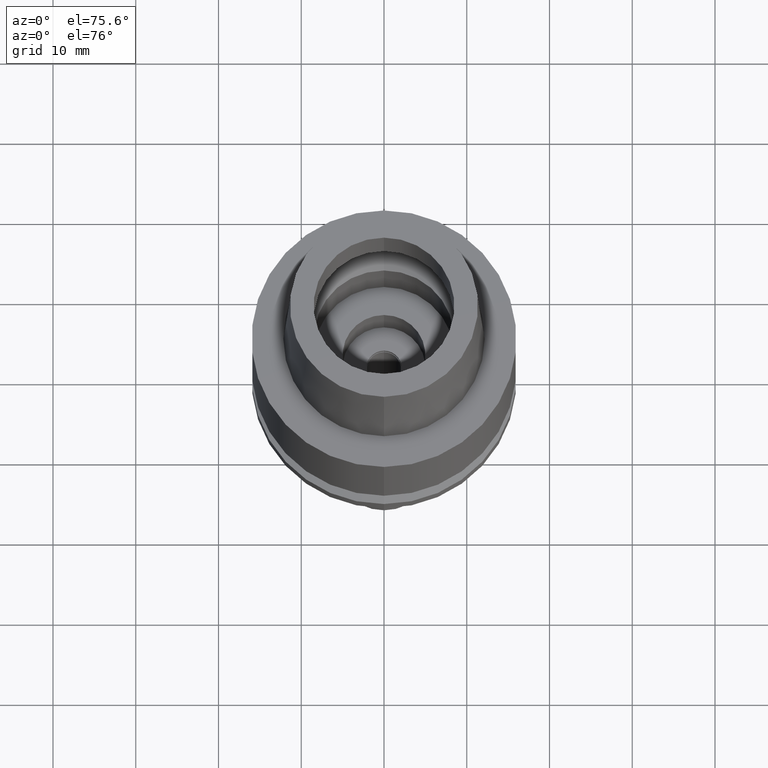
[diagram: clean part render]
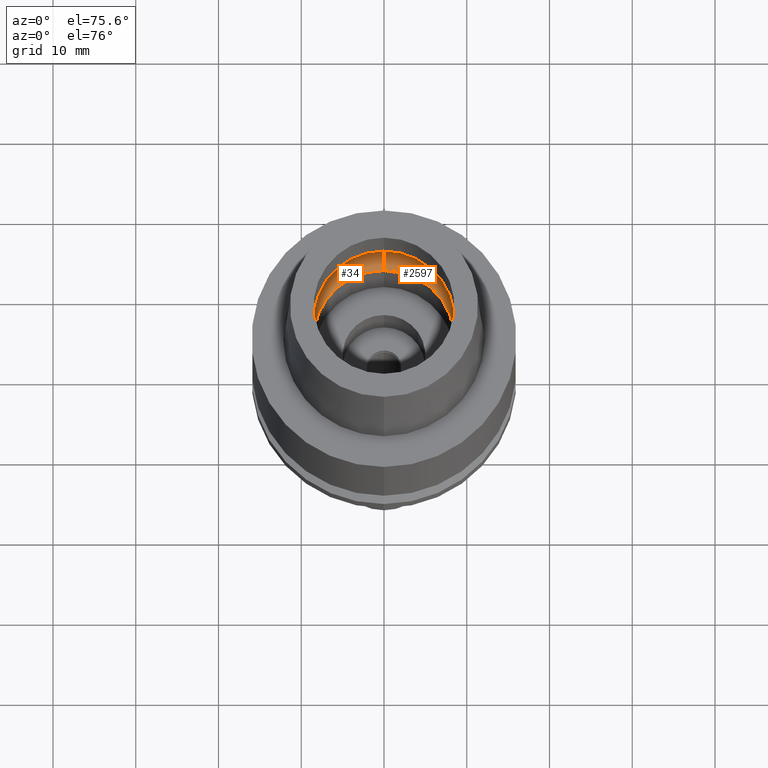
[diagram: same view with one multi-face feature highlighted, each face labeled with its STEP entity id]
A machine part, auxiliary view. The highlighted faces form ONE feature: a constant-radius fillet chain: 2 tangent blend faces with common blend radius 4 mm. The faces share edges in the B-rep.
Their STEP definitions:
[1] entity #34 (Torus):
#34 = ADVANCED_FACE ( 'NONE', ( #607 ), #733, .F. ) ;
#59 = DIRECTION ( 'NONE',  ( 1.000000000000000000, 0.0000000000000000000, 0.0000000000000000000 ) ) ;
#182 = DIRECTION ( 'NONE',  ( 0.0000000000000000000, 0.0000000000000000000, 1.000000000000000000 ) ) ;
#319 = CARTESIAN_POINT ( 'NONE',  ( 0.0000000000000000000, 10.25000000000000000, 3.357000000000000206 ) ) ;
#374 = EDGE_CURVE ( 'NONE', #835, #2148, #814, .T. ) ;
#554 = DIRECTION ( 'NONE',  ( 0.0000000000000000000, 1.000000000000000000, 0.0000000000000000000 ) ) ;
#607 = FACE_OUTER_BOUND ( 'NONE', #1351, .T. ) ;
#676 = CARTESIAN_POINT ( 'NONE',  ( 0.0000000000000000000, -10.25000000000000000, 3.357000000000000206 ) ) ;
#729 = DIRECTION ( 'NONE',  ( 0.0000000000000000000, -0.5624999999999932276, -0.8267972847076892062 ) ) ;
#733 = TOROIDAL_SURFACE ( 'NONE', #2253, 6.250000000000000000, 4.000000000000000000 ) ;
#758 = EDGE_CURVE ( 'NONE', #2148, #2440, #1122, .T. ) ;
#814 = CIRCLE ( 'NONE', #1344, 3.999999999999999112 ) ;
#835 = VERTEX_POINT ( 'NONE', #1057 ) ;
#895 = CIRCLE ( 'NONE', #2547, 8.500000000000000000 ) ;
#1057 = CARTESIAN_POINT ( 'NONE',  ( 0.0000000000000000000, -8.500000000000000000, 0.04981086116928999663 ) ) ;
#1122 = CIRCLE ( 'NONE', #1744, 10.25000000000000000 ) ;
#1123 = ORIENTED_EDGE ( 'NONE', *, *, #374, .F. ) ;
#1131 = DIRECTION ( 'NONE',  ( 0.0000000000000000000, 1.000000000000000000, 0.0000000000000000000 ) ) ;
#1178 = DIRECTION ( 'NONE',  ( -1.000000000000000000, 0.0000000000000000000, 0.0000000000000000000 ) ) ;
#1329 = DIRECTION ( 'NONE',  ( 0.0000000000000000000, 0.0000000000000000000, -1.000000000000000000 ) ) ;
#1344 = AXIS2_PLACEMENT_3D ( 'NONE', #2390, #1178, #729 ) ;
#1351 = EDGE_LOOP ( 'NONE', ( #2577, #1123, #1979, #1454 ) ) ;
#1454 = ORIENTED_EDGE ( 'NONE', *, *, #1789, .T. ) ;
#1501 = DIRECTION ( 'NONE',  ( 0.0000000000000000000, -1.000000000000000000, 0.0000000000000000000 ) ) ;
#1603 = CARTESIAN_POINT ( 'NONE',  ( 0.0000000000000000000, 8.500000000000000000, 0.04981086116927999768 ) ) ;
#1744 = AXIS2_PLACEMENT_3D ( 'NONE', #2531, #1329, #1501 ) ;
#1780 = DIRECTION ( 'NONE',  ( 0.0000000000000000000, 0.0000000000000000000, 1.000000000000000000 ) ) ;
#1789 = EDGE_CURVE ( 'NONE', #2563, #2440, #2073, .T. ) ;
#1979 = ORIENTED_EDGE ( 'NONE', *, *, #2324, .F. ) ;
#2019 = CARTESIAN_POINT ( 'NONE',  ( 0.0000000000000000000, 0.0000000000000000000, 0.04981086116928999663 ) ) ;
#2073 = CIRCLE ( 'NONE', #2502, 3.999999999999999112 ) ;
#2148 = VERTEX_POINT ( 'NONE', #676 ) ;
#2253 = AXIS2_PLACEMENT_3D ( 'NONE', #2679, #182, #554 ) ;
#2314 = DIRECTION ( 'NONE',  ( 0.0000000000000000000, 0.5624999999999932276, -0.8267972847076892062 ) ) ;
#2324 = EDGE_CURVE ( 'NONE', #2563, #835, #895, .T. ) ;
#2338 = CARTESIAN_POINT ( 'NONE',  ( 0.0000000000000000000, 6.250000000000000000, 3.357000000000000206 ) ) ;
#2390 = CARTESIAN_POINT ( 'NONE',  ( 0.0000000000000000000, -6.250000000000000000, 3.357000000000000206 ) ) ;
#2440 = VERTEX_POINT ( 'NONE', #319 ) ;
#2502 = AXIS2_PLACEMENT_3D ( 'NONE', #2338, #59, #2314 ) ;
#2531 = CARTESIAN_POINT ( 'NONE',  ( 0.0000000000000000000, 0.0000000000000000000, 3.357000000000000206 ) ) ;
#2547 = AXIS2_PLACEMENT_3D ( 'NONE', #2019, #1780, #1131 ) ;
#2563 = VERTEX_POINT ( 'NONE', #1603 ) ;
#2577 = ORIENTED_EDGE ( 'NONE', *, *, #758, .F. ) ;
#2679 = CARTESIAN_POINT ( 'NONE',  ( 0.0000000000000000000, 0.0000000000000000000, 3.357000000000000206 ) ) ;
[2] entity #2597 (Torus):
#59 = DIRECTION ( 'NONE',  ( 1.000000000000000000, 0.0000000000000000000, 0.0000000000000000000 ) ) ;
#65 = TOROIDAL_SURFACE ( 'NONE', #2673, 6.250000000000000000, 4.000000000000000000 ) ;
#179 = DIRECTION ( 'NONE',  ( 0.0000000000000000000, 1.000000000000000000, 0.0000000000000000000 ) ) ;
#189 = EDGE_CURVE ( 'NONE', #835, #2563, #2045, .T. ) ;
#197 = CARTESIAN_POINT ( 'NONE',  ( 0.0000000000000000000, 0.0000000000000000000, 3.357000000000000206 ) ) ;
#319 = CARTESIAN_POINT ( 'NONE',  ( 0.0000000000000000000, 10.25000000000000000, 3.357000000000000206 ) ) ;
#374 = EDGE_CURVE ( 'NONE', #835, #2148, #814, .T. ) ;
#419 = ORIENTED_EDGE ( 'NONE', *, *, #1789, .F. ) ;
#521 = EDGE_CURVE ( 'NONE', #2440, #2148, #1569, .T. ) ;
#676 = CARTESIAN_POINT ( 'NONE',  ( 0.0000000000000000000, -10.25000000000000000, 3.357000000000000206 ) ) ;
#703 = ORIENTED_EDGE ( 'NONE', *, *, #189, .F. ) ;
#729 = DIRECTION ( 'NONE',  ( 0.0000000000000000000, -0.5624999999999932276, -0.8267972847076892062 ) ) ;
#814 = CIRCLE ( 'NONE', #1344, 3.999999999999999112 ) ;
#835 = VERTEX_POINT ( 'NONE', #1057 ) ;
#850 = ORIENTED_EDGE ( 'NONE', *, *, #374, .T. ) ;
#908 = AXIS2_PLACEMENT_3D ( 'NONE', #1042, #1243, #179 ) ;
#1030 = DIRECTION ( 'NONE',  ( 0.0000000000000000000, 1.000000000000000000, 0.0000000000000000000 ) ) ;
#1042 = CARTESIAN_POINT ( 'NONE',  ( 0.0000000000000000000, 0.0000000000000000000, 3.357000000000000206 ) ) ;
#1057 = CARTESIAN_POINT ( 'NONE',  ( 0.0000000000000000000, -8.500000000000000000, 0.04981086116928999663 ) ) ;
#1059 = CARTESIAN_POINT ( 'NONE',  ( 0.0000000000000000000, 0.0000000000000000000, 0.04981086116928999663 ) ) ;
#1178 = DIRECTION ( 'NONE',  ( -1.000000000000000000, 0.0000000000000000000, 0.0000000000000000000 ) ) ;
#1243 = DIRECTION ( 'NONE',  ( 0.0000000000000000000, 0.0000000000000000000, -1.000000000000000000 ) ) ;
#1344 = AXIS2_PLACEMENT_3D ( 'NONE', #2390, #1178, #729 ) ;
#1460 = FACE_OUTER_BOUND ( 'NONE', #2310, .T. ) ;
#1545 = ORIENTED_EDGE ( 'NONE', *, *, #521, .F. ) ;
#1569 = CIRCLE ( 'NONE', #908, 10.25000000000000000 ) ;
#1603 = CARTESIAN_POINT ( 'NONE',  ( 0.0000000000000000000, 8.500000000000000000, 0.04981086116927999768 ) ) ;
#1789 = EDGE_CURVE ( 'NONE', #2563, #2440, #2073, .T. ) ;
#1954 = DIRECTION ( 'NONE',  ( 0.0000000000000000000, 0.0000000000000000000, 1.000000000000000000 ) ) ;
#2007 = AXIS2_PLACEMENT_3D ( 'NONE', #1059, #2326, #2535 ) ;
#2045 = CIRCLE ( 'NONE', #2007, 8.500000000000000000 ) ;
#2073 = CIRCLE ( 'NONE', #2502, 3.999999999999999112 ) ;
#2148 = VERTEX_POINT ( 'NONE', #676 ) ;
#2310 = EDGE_LOOP ( 'NONE', ( #703, #850, #1545, #419 ) ) ;
#2314 = DIRECTION ( 'NONE',  ( 0.0000000000000000000, 0.5624999999999932276, -0.8267972847076892062 ) ) ;
#2326 = DIRECTION ( 'NONE',  ( 0.0000000000000000000, 0.0000000000000000000, 1.000000000000000000 ) ) ;
#2338 = CARTESIAN_POINT ( 'NONE',  ( 0.0000000000000000000, 6.250000000000000000, 3.357000000000000206 ) ) ;
#2390 = CARTESIAN_POINT ( 'NONE',  ( 0.0000000000000000000, -6.250000000000000000, 3.357000000000000206 ) ) ;
#2440 = VERTEX_POINT ( 'NONE', #319 ) ;
#2502 = AXIS2_PLACEMENT_3D ( 'NONE', #2338, #59, #2314 ) ;
#2535 = DIRECTION ( 'NONE',  ( 0.0000000000000000000, -1.000000000000000000, 0.0000000000000000000 ) ) ;
#2563 = VERTEX_POINT ( 'NONE', #1603 ) ;
#2597 = ADVANCED_FACE ( 'NONE', ( #1460 ), #65, .F. ) ;
#2673 = AXIS2_PLACEMENT_3D ( 'NONE', #197, #1954, #1030 ) ;